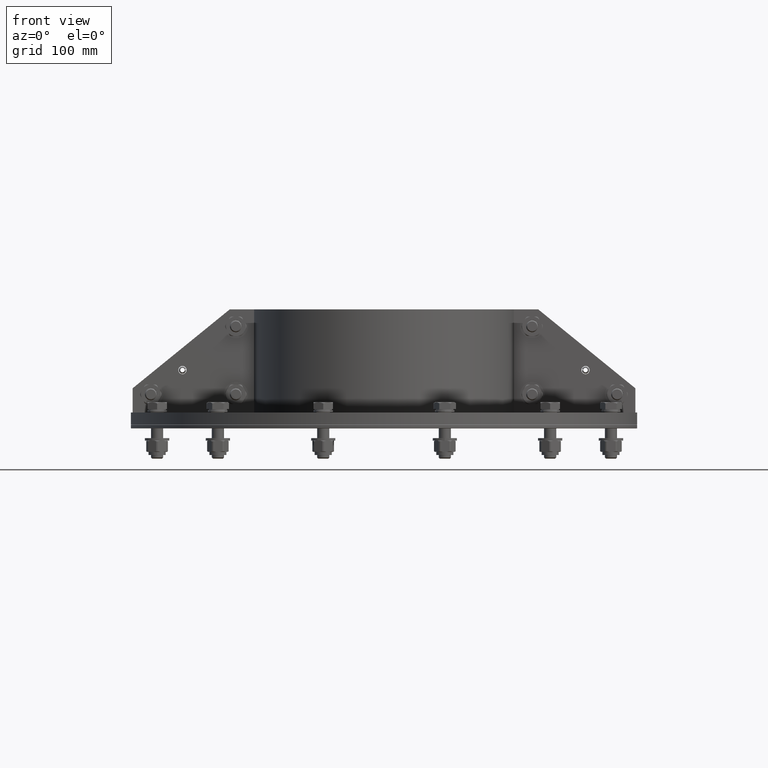
[diagram: clean part render]
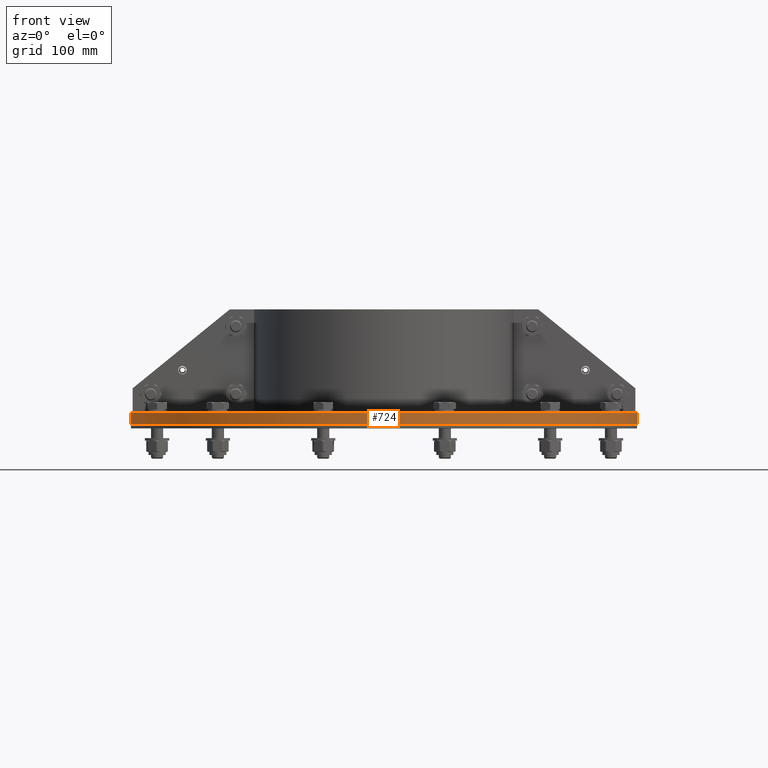
[diagram: same view with one face highlighted and labeled with its STEP entity id]
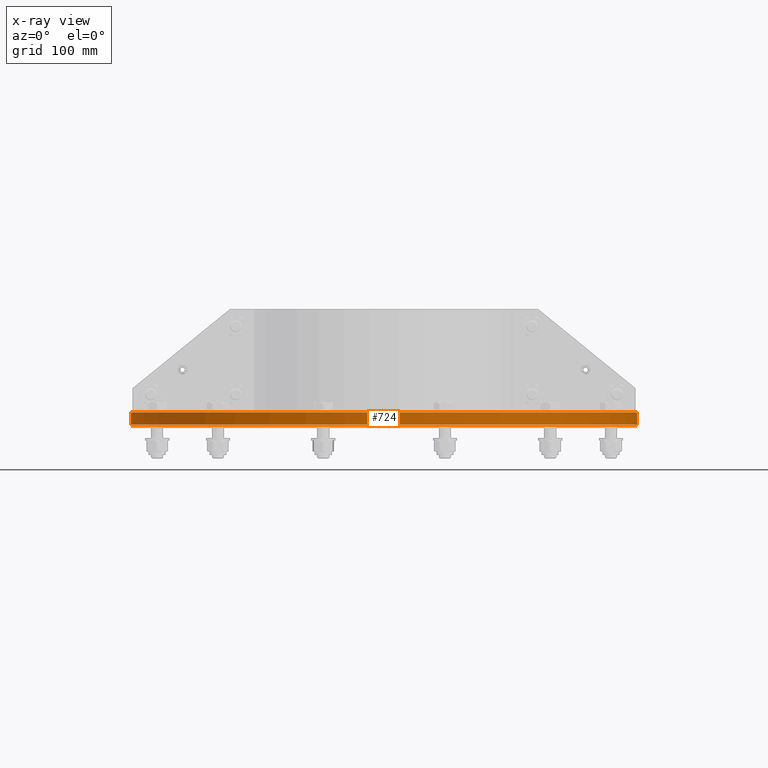
[diagram: x-ray of the same camera — body ghosted, the highlighted face saturated]
A machine part, front view. The second image highlights one B-rep face of the part: STEP entity #724.
The next image is the same camera in x-ray: the body ghosted, the highlighted face saturated — about 0% of this face is hidden behind the body in this view.
In plain terms, the highlighted cylindrical surface (partial cylindrical patch) has radius 208.5 mm, axis along (-0, 0, 1).
Its self-contained STEP definition (entity closure, byte-faithful):
#404=CARTESIAN_POINT('',(208.49990407671655,0.2,10.0));
#405=VERTEX_POINT('',#404);
#406=CARTESIAN_POINT('',(208.49990407671655,0.2,0.0));
#407=VERTEX_POINT('',#406);
#408=CARTESIAN_POINT('',(208.49990407671655,0.2,10.0));
#409=DIRECTION('',(0.0,0.0,-1.0));
#410=VECTOR('',#409,10.0);
#411=LINE('',#408,#410);
#412=EDGE_CURVE('',#405,#407,#411,.T.);
#444=CARTESIAN_POINT('',(-208.49990407671655,0.2,0.0));
#445=VERTEX_POINT('',#444);
#446=CARTESIAN_POINT('',(-208.49990407671655,0.2,10.0));
#447=VERTEX_POINT('',#446);
#448=CARTESIAN_POINT('',(-208.49990407671655,0.2,0.0));
#449=DIRECTION('',(0.0,0.0,1.0));
#450=VECTOR('',#449,10.0);
#451=LINE('',#448,#450);
#452=EDGE_CURVE('',#445,#447,#451,.T.);
#485=CARTESIAN_POINT('',(0.0,0.0,0.0));
#486=DIRECTION('',(0.0,0.0,-1.0));
#487=DIRECTION('',(-1.0,0.0,0.0));
#488=AXIS2_PLACEMENT_3D('',#485,#486,#487);
#489=CIRCLE('',#488,208.5);
#490=EDGE_CURVE('',#445,#407,#489,.T.);
#707=CARTESIAN_POINT('',(0.0,0.0,0.0));
#708=DIRECTION('',(0.0,0.0,1.0));
#709=DIRECTION('',(-1.0,0.0,0.0));
#710=AXIS2_PLACEMENT_3D('',#707,#708,#709);
#711=CYLINDRICAL_SURFACE('',#710,208.5);
#712=ORIENTED_EDGE('',*,*,#452,.T.);
#713=CARTESIAN_POINT('',(0.0,0.0,10.0));
#714=DIRECTION('',(0.0,0.0,-1.0));
#715=DIRECTION('',(-1.0,0.0,0.0));
#716=AXIS2_PLACEMENT_3D('',#713,#714,#715);
#717=CIRCLE('',#716,208.5);
#718=EDGE_CURVE('',#447,#405,#717,.T.);
#719=ORIENTED_EDGE('',*,*,#718,.T.);
#720=ORIENTED_EDGE('',*,*,#412,.T.);
#721=ORIENTED_EDGE('',*,*,#490,.F.);
#722=EDGE_LOOP('',(#712,#719,#720,#721));
#723=FACE_OUTER_BOUND('',#722,.T.);
#724=ADVANCED_FACE('',(#723),#711,.T.);